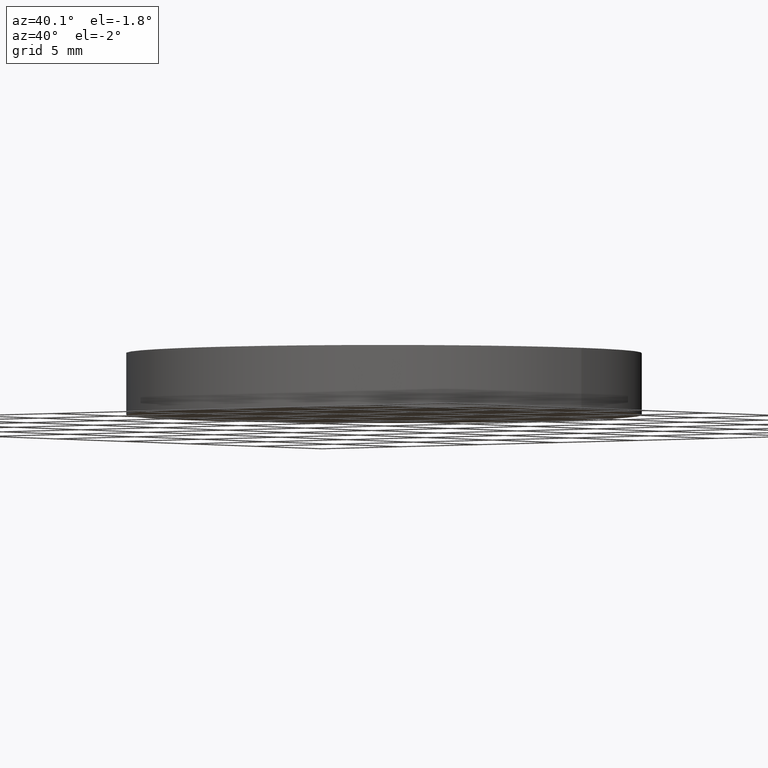
[diagram: clean part render]
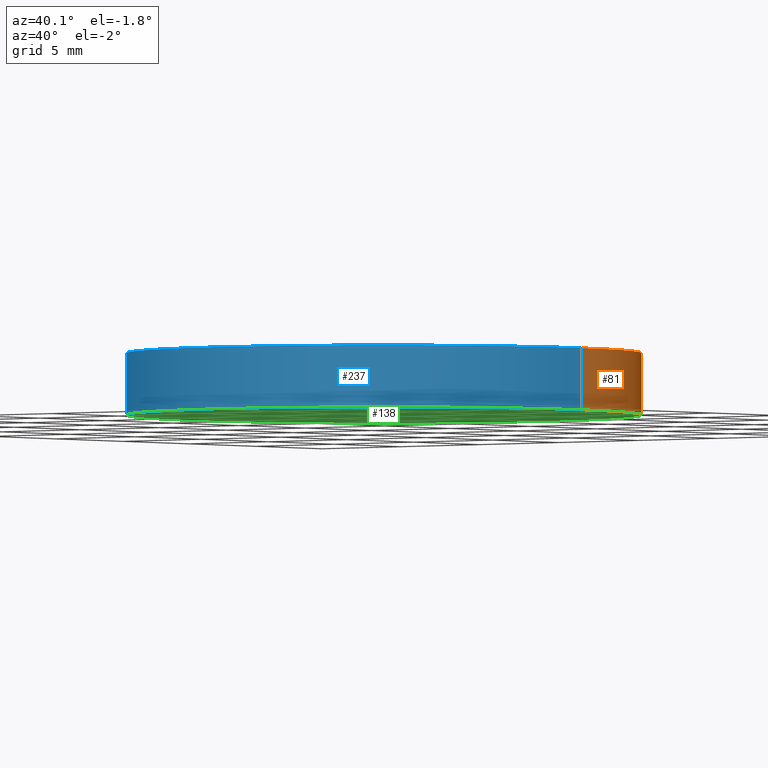
[diagram: same view with three faces highlighted in distinct colors, each labeled with its STEP entity id]
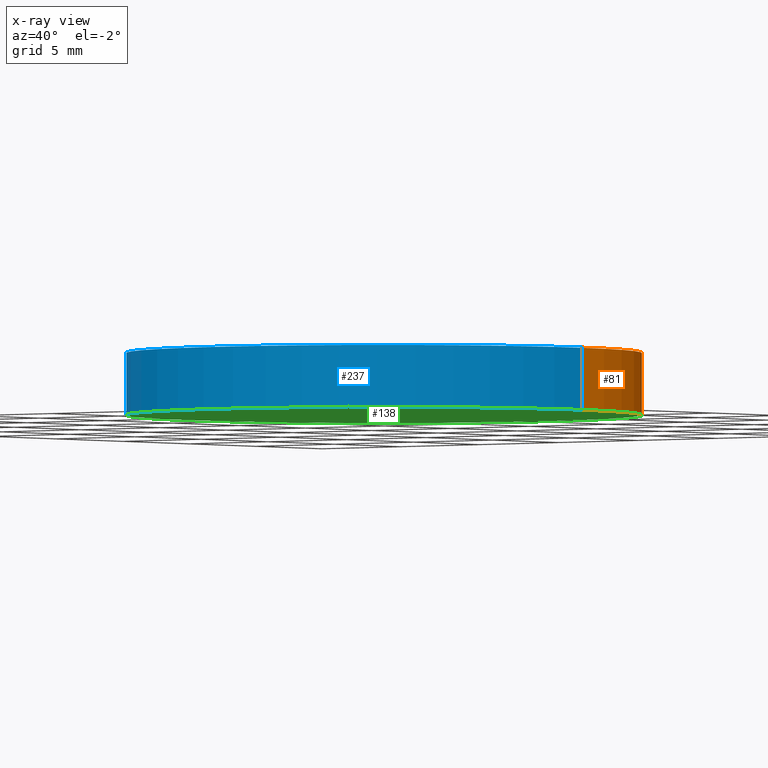
[diagram: x-ray of the same camera — body ghosted, the three highlighted faces saturated]
A machine part, auxiliary view with three faces highlighted in distinct colors.
The next image is the same camera in x-ray (body ghosted, the three faces saturated) — at least one of them is partly hidden behind the body in this view.
Their STEP definitions:

[orange] entity #81 — the highlighted cylindrical surface (partial cylindrical patch) has radius 12.5 mm, axis along (-0, -0, -1).
#4 = DIRECTION ( 'NONE',  ( 0.0000000000000000000, 0.0000000000000000000, 1.000000000000000000 ) ) ;
#7 = ORIENTED_EDGE ( 'NONE', *, *, #85, .T. ) ;
#20 = CARTESIAN_POINT ( 'NONE',  ( 12.50000000000000000, 1.530808498934191500E-015, 3.000000000000000000 ) ) ;
#22 = CYLINDRICAL_SURFACE ( 'NONE', #92, 12.50000000000000000 ) ;
#24 = DIRECTION ( 'NONE',  ( -0.0000000000000000000, -0.0000000000000000000, -1.000000000000000000 ) ) ;
#39 = VERTEX_POINT ( 'NONE', #236 ) ;
#45 = CARTESIAN_POINT ( 'NONE',  ( -12.50000000000000000, 0.0000000000000000000, 0.0000000000000000000 ) ) ;
#47 = DIRECTION ( 'NONE',  ( -0.0000000000000000000, -0.0000000000000000000, -1.000000000000000000 ) ) ;
#54 = CIRCLE ( 'NONE', #125, 12.50000000000000000 ) ;
#61 = DIRECTION ( 'NONE',  ( 0.0000000000000000000, 0.0000000000000000000, 1.000000000000000000 ) ) ;
#73 = AXIS2_PLACEMENT_3D ( 'NONE', #238, #4, #183 ) ;
#74 = ORIENTED_EDGE ( 'NONE', *, *, #209, .F. ) ;
#79 = VECTOR ( 'NONE', #24, 1000.000000000000000 ) ;
#81 = ADVANCED_FACE ( 'NONE', ( #182 ), #22, .T. ) ;
#82 = DIRECTION ( 'NONE',  ( -1.000000000000000000, 0.0000000000000000000, 0.0000000000000000000 ) ) ;
#83 = LINE ( 'NONE', #195, #145 ) ;
#85 = EDGE_CURVE ( 'NONE', #39, #104, #124, .T. ) ;
#92 = AXIS2_PLACEMENT_3D ( 'NONE', #196, #115, #82 ) ;
#98 = DIRECTION ( 'NONE',  ( 1.000000000000000000, 0.0000000000000000000, 0.0000000000000000000 ) ) ;
#104 = VERTEX_POINT ( 'NONE', #235 ) ;
#115 = DIRECTION ( 'NONE',  ( -0.0000000000000000000, -0.0000000000000000000, -1.000000000000000000 ) ) ;
#124 = LINE ( 'NONE', #20, #79 ) ;
#125 = AXIS2_PLACEMENT_3D ( 'NONE', #136, #61, #98 ) ;
#130 = VERTEX_POINT ( 'NONE', #160 ) ;
#136 = CARTESIAN_POINT ( 'NONE',  ( 0.0000000000000000000, 0.0000000000000000000, 3.000000000000000000 ) ) ;
#140 = CIRCLE ( 'NONE', #73, 12.50000000000000000 ) ;
#145 = VECTOR ( 'NONE', #47, 1000.000000000000000 ) ;
#148 = VERTEX_POINT ( 'NONE', #45 ) ;
#160 = CARTESIAN_POINT ( 'NONE',  ( -12.50000000000000000, 0.0000000000000000000, 3.000000000000000000 ) ) ;
#182 = FACE_OUTER_BOUND ( 'NONE', #203, .T. ) ;
#183 = DIRECTION ( 'NONE',  ( 1.000000000000000000, 0.0000000000000000000, 0.0000000000000000000 ) ) ;
#185 = ORIENTED_EDGE ( 'NONE', *, *, #247, .T. ) ;
#195 = CARTESIAN_POINT ( 'NONE',  ( -12.50000000000000000, 0.0000000000000000000, 3.000000000000000000 ) ) ;
#196 = CARTESIAN_POINT ( 'NONE',  ( 0.0000000000000000000, 0.0000000000000000000, 3.000000000000000000 ) ) ;
#203 = EDGE_LOOP ( 'NONE', ( #74, #7, #185, #240 ) ) ;
#209 = EDGE_CURVE ( 'NONE', #39, #130, #54, .T. ) ;
#232 = EDGE_CURVE ( 'NONE', #130, #148, #83, .T. ) ;
#235 = CARTESIAN_POINT ( 'NONE',  ( 12.50000000000000000, 1.530808498934191500E-015, 0.0000000000000000000 ) ) ;
#236 = CARTESIAN_POINT ( 'NONE',  ( 12.50000000000000000, 1.530808498934191500E-015, 3.000000000000000000 ) ) ;
#238 = CARTESIAN_POINT ( 'NONE',  ( 0.0000000000000000000, 0.0000000000000000000, 0.0000000000000000000 ) ) ;
#240 = ORIENTED_EDGE ( 'NONE', *, *, #232, .F. ) ;
#247 = EDGE_CURVE ( 'NONE', #104, #148, #140, .T. ) ;

[blue] entity #237 — the highlighted cylindrical surface (partial cylindrical patch) has radius 12.5 mm, axis along (-0, -0, -1).
#20 = CARTESIAN_POINT ( 'NONE',  ( 12.50000000000000000, 1.530808498934191500E-015, 3.000000000000000000 ) ) ;
#24 = DIRECTION ( 'NONE',  ( -0.0000000000000000000, -0.0000000000000000000, -1.000000000000000000 ) ) ;
#26 = CARTESIAN_POINT ( 'NONE',  ( 0.0000000000000000000, 0.0000000000000000000, 3.000000000000000000 ) ) ;
#28 = DIRECTION ( 'NONE',  ( 1.000000000000000000, 0.0000000000000000000, 0.0000000000000000000 ) ) ;
#32 = CIRCLE ( 'NONE', #41, 12.50000000000000000 ) ;
#39 = VERTEX_POINT ( 'NONE', #236 ) ;
#41 = AXIS2_PLACEMENT_3D ( 'NONE', #214, #137, #117 ) ;
#42 = EDGE_LOOP ( 'NONE', ( #57, #127, #135, #87 ) ) ;
#45 = CARTESIAN_POINT ( 'NONE',  ( -12.50000000000000000, 0.0000000000000000000, 0.0000000000000000000 ) ) ;
#46 = CYLINDRICAL_SURFACE ( 'NONE', #177, 12.50000000000000000 ) ;
#47 = DIRECTION ( 'NONE',  ( -0.0000000000000000000, -0.0000000000000000000, -1.000000000000000000 ) ) ;
#49 = EDGE_CURVE ( 'NONE', #148, #104, #32, .T. ) ;
#57 = ORIENTED_EDGE ( 'NONE', *, *, #85, .F. ) ;
#79 = VECTOR ( 'NONE', #24, 1000.000000000000000 ) ;
#83 = LINE ( 'NONE', #195, #145 ) ;
#85 = EDGE_CURVE ( 'NONE', #39, #104, #124, .T. ) ;
#87 = ORIENTED_EDGE ( 'NONE', *, *, #49, .T. ) ;
#99 = AXIS2_PLACEMENT_3D ( 'NONE', #26, #221, #28 ) ;
#104 = VERTEX_POINT ( 'NONE', #235 ) ;
#116 = DIRECTION ( 'NONE',  ( -1.000000000000000000, 0.0000000000000000000, 0.0000000000000000000 ) ) ;
#117 = DIRECTION ( 'NONE',  ( 1.000000000000000000, 0.0000000000000000000, 0.0000000000000000000 ) ) ;
#124 = LINE ( 'NONE', #20, #79 ) ;
#127 = ORIENTED_EDGE ( 'NONE', *, *, #242, .F. ) ;
#130 = VERTEX_POINT ( 'NONE', #160 ) ;
#135 = ORIENTED_EDGE ( 'NONE', *, *, #232, .T. ) ;
#137 = DIRECTION ( 'NONE',  ( 0.0000000000000000000, 0.0000000000000000000, 1.000000000000000000 ) ) ;
#145 = VECTOR ( 'NONE', #47, 1000.000000000000000 ) ;
#148 = VERTEX_POINT ( 'NONE', #45 ) ;
#160 = CARTESIAN_POINT ( 'NONE',  ( -12.50000000000000000, 0.0000000000000000000, 3.000000000000000000 ) ) ;
#161 = DIRECTION ( 'NONE',  ( -0.0000000000000000000, -0.0000000000000000000, -1.000000000000000000 ) ) ;
#177 = AXIS2_PLACEMENT_3D ( 'NONE', #216, #161, #116 ) ;
#190 = FACE_OUTER_BOUND ( 'NONE', #42, .T. ) ;
#195 = CARTESIAN_POINT ( 'NONE',  ( -12.50000000000000000, 0.0000000000000000000, 3.000000000000000000 ) ) ;
#214 = CARTESIAN_POINT ( 'NONE',  ( 0.0000000000000000000, 0.0000000000000000000, 0.0000000000000000000 ) ) ;
#216 = CARTESIAN_POINT ( 'NONE',  ( 0.0000000000000000000, 0.0000000000000000000, 3.000000000000000000 ) ) ;
#221 = DIRECTION ( 'NONE',  ( 0.0000000000000000000, 0.0000000000000000000, 1.000000000000000000 ) ) ;
#231 = CIRCLE ( 'NONE', #99, 12.50000000000000000 ) ;
#232 = EDGE_CURVE ( 'NONE', #130, #148, #83, .T. ) ;
#235 = CARTESIAN_POINT ( 'NONE',  ( 12.50000000000000000, 1.530808498934191500E-015, 0.0000000000000000000 ) ) ;
#236 = CARTESIAN_POINT ( 'NONE',  ( 12.50000000000000000, 1.530808498934191500E-015, 3.000000000000000000 ) ) ;
#237 = ADVANCED_FACE ( 'NONE', ( #190 ), #46, .T. ) ;
#242 = EDGE_CURVE ( 'NONE', #130, #39, #231, .T. ) ;

[green] entity #138 — the highlighted planar face has unit normal (0, 0, 1).
#4 = DIRECTION ( 'NONE',  ( 0.0000000000000000000, 0.0000000000000000000, 1.000000000000000000 ) ) ;
#8 = AXIS2_PLACEMENT_3D ( 'NONE', #23, #157, #217 ) ;
#23 = CARTESIAN_POINT ( 'NONE',  ( 0.0000000000000000000, 0.0000000000000000000, 0.0000000000000000000 ) ) ;
#27 = ORIENTED_EDGE ( 'NONE', *, *, #49, .F. ) ;
#32 = CIRCLE ( 'NONE', #41, 12.50000000000000000 ) ;
#41 = AXIS2_PLACEMENT_3D ( 'NONE', #214, #137, #117 ) ;
#45 = CARTESIAN_POINT ( 'NONE',  ( -12.50000000000000000, 0.0000000000000000000, 0.0000000000000000000 ) ) ;
#49 = EDGE_CURVE ( 'NONE', #148, #104, #32, .T. ) ;
#73 = AXIS2_PLACEMENT_3D ( 'NONE', #238, #4, #183 ) ;
#104 = VERTEX_POINT ( 'NONE', #235 ) ;
#117 = DIRECTION ( 'NONE',  ( 1.000000000000000000, 0.0000000000000000000, 0.0000000000000000000 ) ) ;
#137 = DIRECTION ( 'NONE',  ( 0.0000000000000000000, 0.0000000000000000000, 1.000000000000000000 ) ) ;
#138 = ADVANCED_FACE ( 'NONE', ( #253 ), #175, .F. ) ;
#140 = CIRCLE ( 'NONE', #73, 12.50000000000000000 ) ;
#148 = VERTEX_POINT ( 'NONE', #45 ) ;
#157 = DIRECTION ( 'NONE',  ( 0.0000000000000000000, 0.0000000000000000000, 1.000000000000000000 ) ) ;
#175 = PLANE ( 'NONE',  #8 ) ;
#178 = ORIENTED_EDGE ( 'NONE', *, *, #247, .F. ) ;
#183 = DIRECTION ( 'NONE',  ( 1.000000000000000000, 0.0000000000000000000, 0.0000000000000000000 ) ) ;
#188 = EDGE_LOOP ( 'NONE', ( #27, #178 ) ) ;
#214 = CARTESIAN_POINT ( 'NONE',  ( 0.0000000000000000000, 0.0000000000000000000, 0.0000000000000000000 ) ) ;
#217 = DIRECTION ( 'NONE',  ( 1.000000000000000000, 0.0000000000000000000, -0.0000000000000000000 ) ) ;
#235 = CARTESIAN_POINT ( 'NONE',  ( 12.50000000000000000, 1.530808498934191500E-015, 0.0000000000000000000 ) ) ;
#238 = CARTESIAN_POINT ( 'NONE',  ( 0.0000000000000000000, 0.0000000000000000000, 0.0000000000000000000 ) ) ;
#247 = EDGE_CURVE ( 'NONE', #104, #148, #140, .T. ) ;
#253 = FACE_OUTER_BOUND ( 'NONE', #188, .T. ) ;